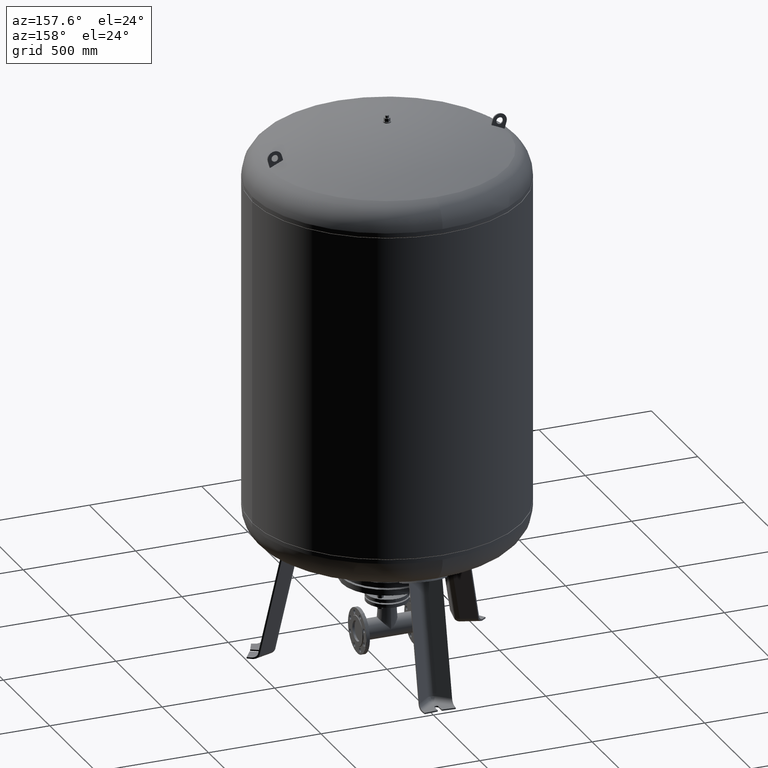
[diagram: clean part render]
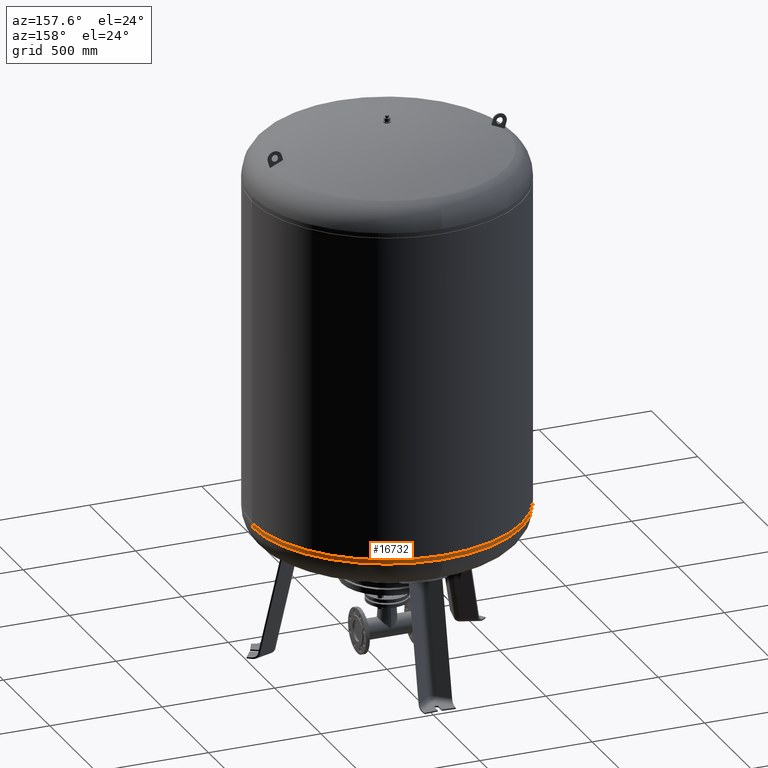
[diagram: same view with one face highlighted and labeled with its STEP entity id]
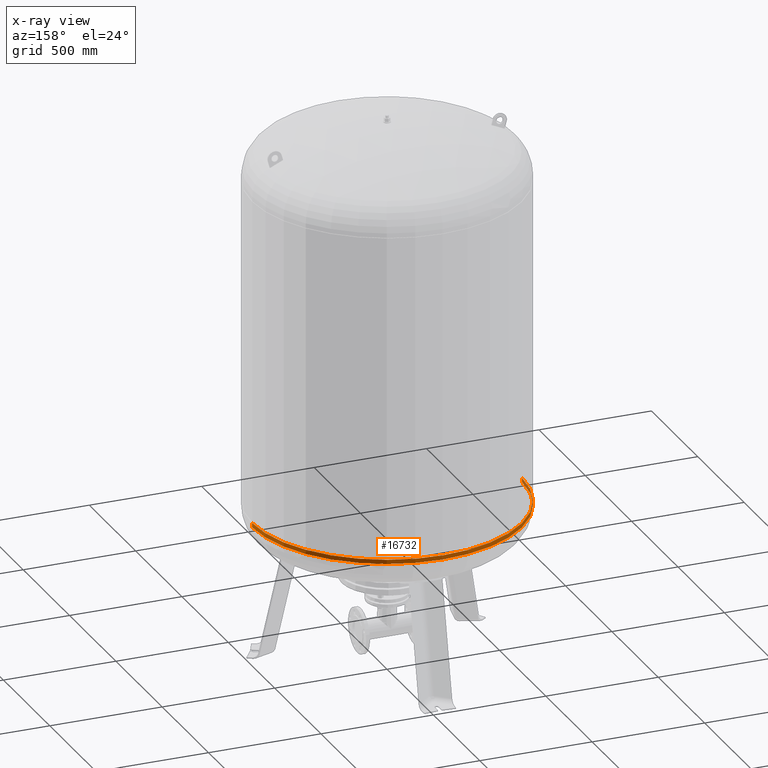
[diagram: x-ray of the same camera — body ghosted, the highlighted face saturated]
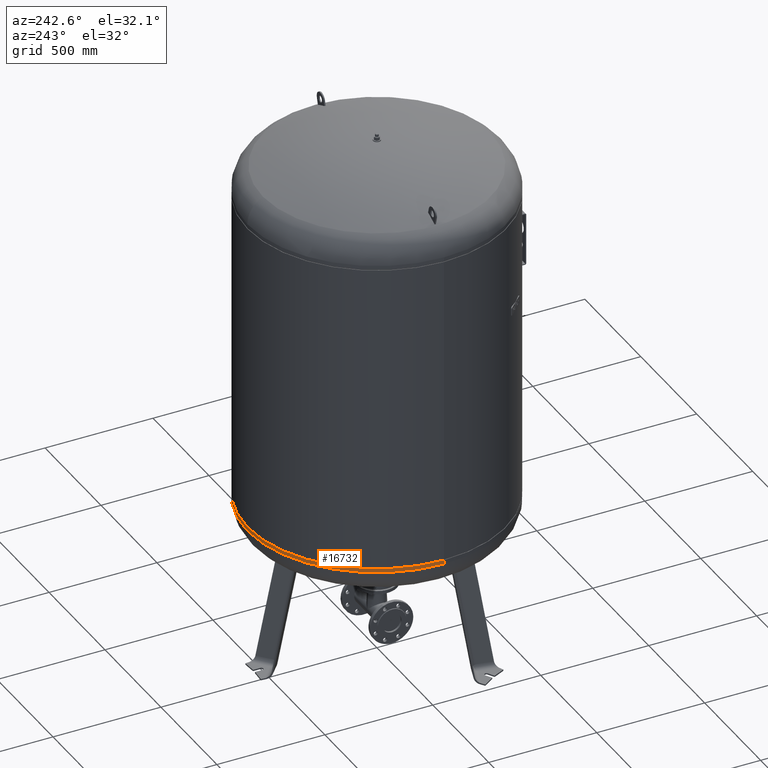
[diagram: same view with one face highlighted and labeled with its STEP entity id]
A machine part, auxiliary view. The second image highlights one B-rep face of the part: STEP entity #16732.
The next image is the same camera in x-ray: the body ghosted, the highlighted face saturated — about 2% of this face is hidden behind the body in this view.
A second angle (auxiliary view) of the same face is appended — the face is thin or edge-on in the first view.
In plain terms, the highlighted cylindrical surface (partial cylindrical patch) has radius 600 mm, axis along (-0, -0, 1).
Its self-contained STEP definition (entity closure, byte-faithful):
#16682=CARTESIAN_POINT('',(-3.693994E-014,-4.510566E-014,704.543771283136150));
#16683=DIRECTION('',(-1.504413E-016,-1.836970E-016,1.0));
#16684=DIRECTION('',(-1.0,0.0,0.0));
#16685=AXIS2_PLACEMENT_3D('',#16682,#16683,#16684);
#16686=CYLINDRICAL_SURFACE('',#16685,599.999999999999890);
#16687=CARTESIAN_POINT('',(-600.000000000000110,-4.684274E-014,714.0));
#16688=VERTEX_POINT('',#16687);
#16689=CARTESIAN_POINT('',(-600.0,-4.336858E-014,695.087542566272190));
#16690=VERTEX_POINT('',#16689);
#16691=CARTESIAN_POINT('',(-600.000000000000110,-4.684274E-014,714.0));
#16692=DIRECTION('',(0.0,0.0,-1.0));
#16693=VECTOR('',#16692,18.912457433727809);
#16694=LINE('',#16691,#16693);
#16695=EDGE_CURVE('',#16688,#16690,#16694,.T.);
#16696=ORIENTED_EDGE('',*,*,#16695,.F.);
#16697=CARTESIAN_POINT('',(599.999999999999890,2.663364E-014,714.000000000000110));
#16698=VERTEX_POINT('',#16697);
#16699=CARTESIAN_POINT('',(-3.836254E-014,-4.684274E-014,714.0));
#16700=DIRECTION('',(0.0,0.0,1.0));
#16701=DIRECTION('',(-1.0,0.0,0.0));
#16702=AXIS2_PLACEMENT_3D('',#16699,#16700,#16701);
#16703=CIRCLE('',#16702,600.0);
#16704=EDGE_CURVE('',#16698,#16688,#16703,.T.);
#16705=ORIENTED_EDGE('',*,*,#16704,.F.);
#16706=CARTESIAN_POINT('',(599.999999999999890,3.010780E-014,695.087542566272300));
#16707=VERTEX_POINT('',#16706);
#16708=CARTESIAN_POINT('',(599.999999999999890,2.663364E-014,714.000000000000110));
#16709=DIRECTION('',(0.0,0.0,-1.0));
#16710=VECTOR('',#16709,18.912457433727809);
#16711=LINE('',#16708,#16710);
#16712=EDGE_CURVE('',#16698,#16707,#16711,.T.);
#16713=ORIENTED_EDGE('',*,*,#16712,.T.);
#16714=CARTESIAN_POINT('',(-1.445307E-013,600.0,695.087542566272420));
#16715=VERTEX_POINT('',#16714);
#16716=CARTESIAN_POINT('',(-3.551733E-014,-4.336858E-014,695.087542566272300));
#16717=DIRECTION('',(0.0,0.0,1.0));
#16718=DIRECTION('',(-1.0,0.0,0.0));
#16719=AXIS2_PLACEMENT_3D('',#16716,#16717,#16718);
#16720=CIRCLE('',#16719,600.0);
#16721=EDGE_CURVE('',#16707,#16715,#16720,.T.);
#16722=ORIENTED_EDGE('',*,*,#16721,.T.);
#16723=CARTESIAN_POINT('',(-3.551733E-014,-4.336858E-014,695.087542566272300));
#16724=DIRECTION('',(0.0,0.0,1.0));
#16725=DIRECTION('',(-1.0,0.0,0.0));
#16726=AXIS2_PLACEMENT_3D('',#16723,#16724,#16725);
#16727=CIRCLE('',#16726,600.0);
#16728=EDGE_CURVE('',#16715,#16690,#16727,.T.);
#16729=ORIENTED_EDGE('',*,*,#16728,.T.);
#16730=EDGE_LOOP('',(#16696,#16705,#16713,#16722,#16729));
#16731=FACE_OUTER_BOUND('',#16730,.T.);
#16732=ADVANCED_FACE('',(#16731),#16686,.T.);